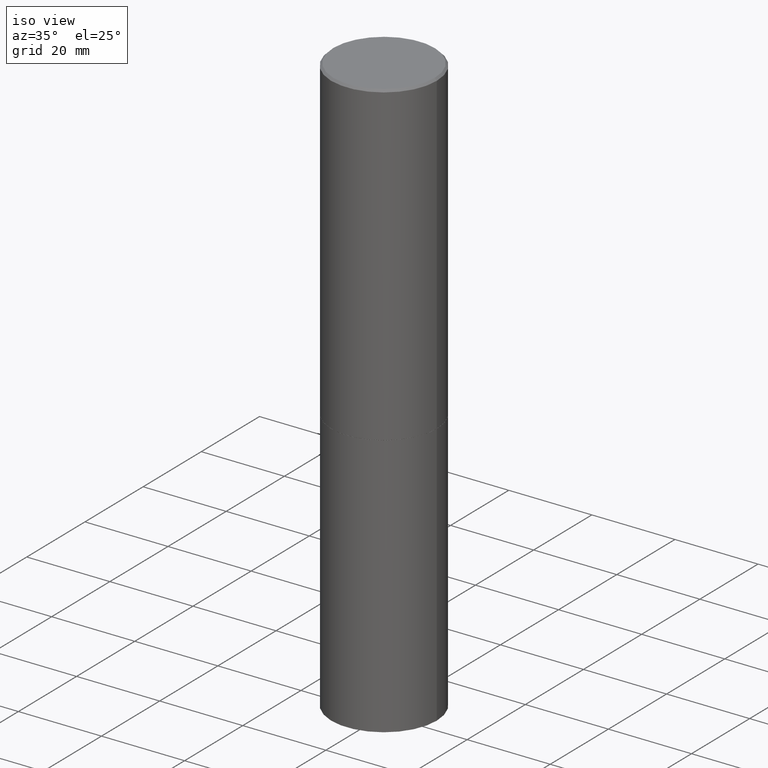
[diagram: clean part render]
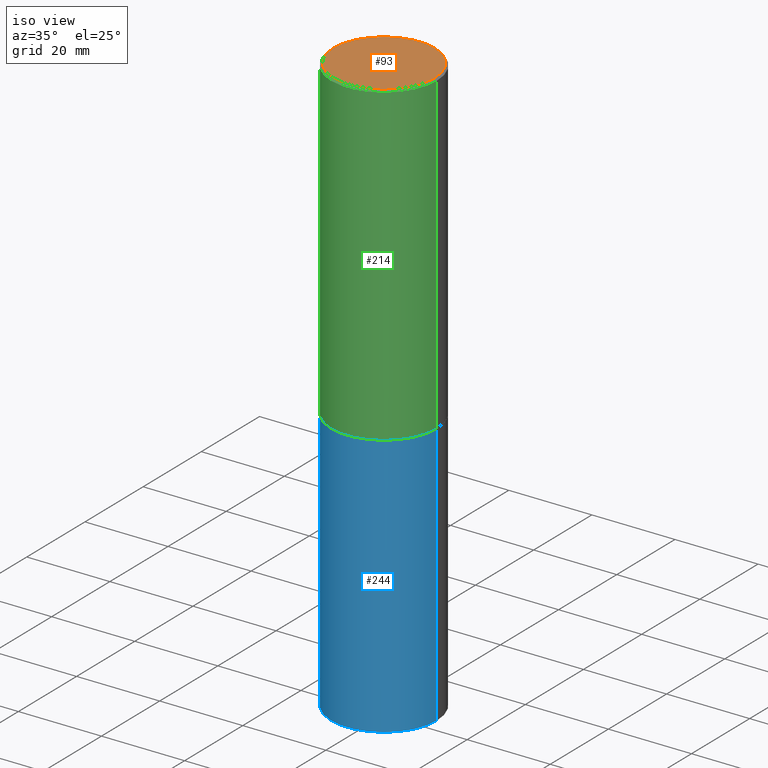
[diagram: same view with three faces highlighted in distinct colors, each labeled with its STEP entity id]
A machine part, iso view with three faces highlighted in distinct colors.
Their STEP definitions:

[orange] entity #93 — the highlighted planar face has unit normal (0, -0, -1).
#11 = CARTESIAN_POINT ( 'NONE',  ( -0.4799999999999996492, 3.386736898677836830E-15, 1.280553747027767124E-17 ) ) ;
#32 = VERTEX_POINT ( 'NONE', #11 ) ;
#39 = CARTESIAN_POINT ( 'NONE',  ( 3.351822085289405181E-15, 0.4799999999999996492, -1.669508273909558064E-15 ) ) ;
#41 = DIRECTION ( 'NONE',  ( -1.000000000000000000, 6.982962677686265922E-15, -4.876176775795935793E-29 ) ) ;
#70 = CARTESIAN_POINT ( 'NONE',  ( -3.131554243005659264E-46, 4.471029511141341874E-32, 1.280553747030123384E-17 ) ) ;
#93 = ADVANCED_FACE ( 'NONE', ( #120 ), #94, .F. ) ;
#94 = PLANE ( 'NONE',  #232 ) ;
#97 = CIRCLE ( 'NONE', #194, 0.4799999999999996492 ) ;
#101 = DIRECTION ( 'NONE',  ( -2.445468806185136597E-29, 3.491481338843145583E-15, 1.000000000000000000 ) ) ;
#120 = FACE_OUTER_BOUND ( 'NONE', #276, .T. ) ;
#185 = DIRECTION ( 'NONE',  ( -2.445468806185136597E-29, 3.491481338843145583E-15, 1.000000000000000000 ) ) ;
#194 = AXIS2_PLACEMENT_3D ( 'NONE', #70, #185, #331 ) ;
#204 = EDGE_CURVE ( 'NONE', #222, #32, #97, .T. ) ;
#222 = VERTEX_POINT ( 'NONE', #360 ) ;
#228 = CIRCLE ( 'NONE', #298, 0.4799999999999996492 ) ;
#232 = AXIS2_PLACEMENT_3D ( 'NONE', #39, #234, #41 ) ;
#234 = DIRECTION ( 'NONE',  ( 2.438088387897960049E-29, -3.491481338843145188E-15, -1.000000000000000000 ) ) ;
#242 = DIRECTION ( 'NONE',  ( 1.000000000000000000, -6.982962677686267499E-15, 4.876036955247132767E-29 ) ) ;
#274 = ORIENTED_EDGE ( 'NONE', *, *, #204, .T. ) ;
#276 = EDGE_LOOP ( 'NONE', ( #308, #274 ) ) ;
#298 = AXIS2_PLACEMENT_3D ( 'NONE', #357, #101, #242 ) ;
#308 = ORIENTED_EDGE ( 'NONE', *, *, #348, .T. ) ;
#331 = DIRECTION ( 'NONE',  ( 1.000000000000000000, -6.982962677686267499E-15, 4.876036955247132767E-29 ) ) ;
#348 = EDGE_CURVE ( 'NONE', #32, #222, #228, .T. ) ;
#357 = CARTESIAN_POINT ( 'NONE',  ( -3.131554243005659264E-46, 4.471029511141341874E-32, 1.280553747030123384E-17 ) ) ;
#360 = CARTESIAN_POINT ( 'NONE',  ( 0.4799999999999996492, -3.396558832296480127E-15, 1.280553747032483033E-17 ) ) ;

[blue] entity #244 — the highlighted cylindrical surface (partial cylindrical patch) has radius 12.7 mm, axis along (-0, 0, 1).
#8 = CARTESIAN_POINT ( 'NONE',  ( 0.5000000000000000000, -3.491481338843133355E-15, 2.438088387897967896E-29 ) ) ;
#19 = CARTESIAN_POINT ( 'NONE',  ( 0.000000000000000000, 0.000000000000000000, 0.000000000000000000 ) ) ;
#26 = VERTEX_POINT ( 'NONE', #60 ) ;
#60 = CARTESIAN_POINT ( 'NONE',  ( 0.5000000000000000000, -2.269462870248043307E-14, -5.500000000000000000 ) ) ;
#98 = EDGE_CURVE ( 'NONE', #26, #129, #233, .T. ) ;
#113 = EDGE_LOOP ( 'NONE', ( #247, #311, #220, #281 ) ) ;
#129 = VERTEX_POINT ( 'NONE', #320 ) ;
#131 = EDGE_CURVE ( 'NONE', #364, #129, #303, .T. ) ;
#145 = CARTESIAN_POINT ( 'NONE',  ( 7.336406418555408669E-29, -1.047444401652943478E-14, -2.999999999999999556 ) ) ;
#150 = CARTESIAN_POINT ( 'NONE',  ( -0.5000000000000000000, -1.128608201128286632E-14, -2.999999999999999556 ) ) ;
#152 = DIRECTION ( 'NONE',  ( 1.000000000000000000, -6.982962677686262766E-15, 0.000000000000000000 ) ) ;
#153 = FACE_OUTER_BOUND ( 'NONE', #113, .T. ) ;
#175 = AXIS2_PLACEMENT_3D ( 'NONE', #19, #187, #295 ) ;
#179 = AXIS2_PLACEMENT_3D ( 'NONE', #181, #265, #152 ) ;
#181 = CARTESIAN_POINT ( 'NONE',  ( 1.345007843401824904E-28, -1.920314736363729972E-14, -5.500000000000000000 ) ) ;
#184 = CYLINDRICAL_SURFACE ( 'NONE', #175, 0.5000000000000000000 ) ;
#187 = DIRECTION ( 'NONE',  ( -2.445468806185136597E-29, 3.491481338843145583E-15, 1.000000000000000000 ) ) ;
#196 = VERTEX_POINT ( 'NONE', #319 ) ;
#215 = VECTOR ( 'NONE', #230, 39.37007874015748143 ) ;
#220 = ORIENTED_EDGE ( 'NONE', *, *, #98, .T. ) ;
#226 = EDGE_CURVE ( 'NONE', #196, #364, #325, .T. ) ;
#230 = DIRECTION ( 'NONE',  ( -2.445468806185136877E-29, 3.491481338843145188E-15, 1.000000000000000000 ) ) ;
#231 = DIRECTION ( 'NONE',  ( -2.445468806185136597E-29, 3.491481338843145583E-15, 1.000000000000000000 ) ) ;
#233 = LINE ( 'NONE', #8, #215 ) ;
#244 = ADVANCED_FACE ( 'NONE', ( #153 ), #184, .T. ) ;
#247 = ORIENTED_EDGE ( 'NONE', *, *, #226, .F. ) ;
#265 = DIRECTION ( 'NONE',  ( -2.445468806185136597E-29, 3.491481338843145583E-15, 1.000000000000000000 ) ) ;
#270 = DIRECTION ( 'NONE',  ( -2.445468806185136877E-29, 3.491481338843145188E-15, 1.000000000000000000 ) ) ;
#281 = ORIENTED_EDGE ( 'NONE', *, *, #131, .F. ) ;
#285 = EDGE_CURVE ( 'NONE', #196, #26, #330, .T. ) ;
#295 = DIRECTION ( 'NONE',  ( 1.000000000000000000, -6.982962677686266711E-15, 4.876176775795935793E-29 ) ) ;
#297 = AXIS2_PLACEMENT_3D ( 'NONE', #145, #231, #322 ) ;
#303 = CIRCLE ( 'NONE', #297, 0.5000000000000000000 ) ;
#311 = ORIENTED_EDGE ( 'NONE', *, *, #285, .T. ) ;
#316 = VECTOR ( 'NONE', #270, 39.37007874015748143 ) ;
#319 = CARTESIAN_POINT ( 'NONE',  ( -0.5000000000000000000, -1.128608201128286632E-14, -5.500000000000000000 ) ) ;
#320 = CARTESIAN_POINT ( 'NONE',  ( 0.5000000000000000000, -1.396592535537256813E-14, -2.999999999999999556 ) ) ;
#322 = DIRECTION ( 'NONE',  ( 1.000000000000000000, -6.982962677686266711E-15, 0.000000000000000000 ) ) ;
#325 = LINE ( 'NONE', #329, #316 ) ;
#329 = CARTESIAN_POINT ( 'NONE',  ( -0.5000000000000000000, 3.552713678800500929E-15, -2.459467545127452891E-29 ) ) ;
#330 = CIRCLE ( 'NONE', #179, 0.5000000000000000000 ) ;
#364 = VERTEX_POINT ( 'NONE', #150 ) ;

[green] entity #214 — the highlighted cylindrical surface (partial cylindrical patch) has radius 12.7 mm, axis along (-0, 0, 1).
#13 = DIRECTION ( 'NONE',  ( -2.445468806185136597E-29, 3.491481338843145583E-15, 1.000000000000000000 ) ) ;
#17 = CARTESIAN_POINT ( 'NONE',  ( 0.4999999999999998335, -3.491481338843132566E-15, 2.438088387897967336E-29 ) ) ;
#30 = AXIS2_PLACEMENT_3D ( 'NONE', #156, #13, #236 ) ;
#35 = VERTEX_POINT ( 'NONE', #40 ) ;
#37 = CARTESIAN_POINT ( 'NONE',  ( -0.4999999999999998335, 3.552713678800499746E-15, -2.459467545127452330E-29 ) ) ;
#40 = CARTESIAN_POINT ( 'NONE',  ( 0.4999999999999997224, -3.500078625662627502E-15, -0.02000000000000012879 ) ) ;
#45 = DIRECTION ( 'NONE',  ( -2.445468806185136597E-29, 3.491481338843145583E-15, 1.000000000000000000 ) ) ;
#50 = VERTEX_POINT ( 'NONE', #258 ) ;
#54 = EDGE_LOOP ( 'NONE', ( #254, #130, #343, #332 ) ) ;
#63 = DIRECTION ( 'NONE',  ( -2.445468806185136877E-29, 3.491481338843145188E-15, 1.000000000000000000 ) ) ;
#66 = EDGE_CURVE ( 'NONE', #50, #137, #260, .T. ) ;
#67 = LINE ( 'NONE', #17, #273 ) ;
#71 = CARTESIAN_POINT ( 'NONE',  ( 0.5000000000000000000, -1.396243387403372828E-14, -2.999000000000000554 ) ) ;
#78 = AXIS2_PLACEMENT_3D ( 'NONE', #211, #45, #355 ) ;
#86 = VECTOR ( 'NONE', #63, 39.37007874015748143 ) ;
#127 = DIRECTION ( 'NONE',  ( -2.445468806185136597E-29, 3.491481338843145583E-15, 1.000000000000000000 ) ) ;
#130 = ORIENTED_EDGE ( 'NONE', *, *, #218, .T. ) ;
#137 = VERTEX_POINT ( 'NONE', #177 ) ;
#154 = CYLINDRICAL_SURFACE ( 'NONE', #30, 0.4999999999999998335 ) ;
#156 = CARTESIAN_POINT ( 'NONE',  ( 0.000000000000000000, 0.000000000000000000, 0.000000000000000000 ) ) ;
#160 = CIRCLE ( 'NONE', #78, 0.5000000000000000000 ) ;
#177 = CARTESIAN_POINT ( 'NONE',  ( -0.4999999999999997224, 3.421651712066268085E-15, -0.02000000000000012879 ) ) ;
#211 = CARTESIAN_POINT ( 'NONE',  ( 7.333960949749226429E-29, -1.047095253519059492E-14, -2.999000000000000554 ) ) ;
#214 = ADVANCED_FACE ( 'NONE', ( #299 ), #154, .T. ) ;
#216 = DIRECTION ( 'NONE',  ( -2.445468806185136877E-29, 3.491481338843145188E-15, 1.000000000000000000 ) ) ;
#218 = EDGE_CURVE ( 'NONE', #50, #278, #160, .T. ) ;
#236 = DIRECTION ( 'NONE',  ( 1.000000000000000000, -6.982962677686267499E-15, 4.876176775795936353E-29 ) ) ;
#238 = EDGE_CURVE ( 'NONE', #278, #35, #67, .T. ) ;
#254 = ORIENTED_EDGE ( 'NONE', *, *, #66, .F. ) ;
#258 = CARTESIAN_POINT ( 'NONE',  ( -0.5000000000000000000, -1.717677402183226998E-15, -2.999000000000000554 ) ) ;
#260 = LINE ( 'NONE', #37, #86 ) ;
#263 = CIRCLE ( 'NONE', #291, 0.4999999999999997224 ) ;
#269 = DIRECTION ( 'NONE',  ( 1.000000000000000000, -6.982962677686266711E-15, 0.000000000000000000 ) ) ;
#273 = VECTOR ( 'NONE', #216, 39.37007874015748143 ) ;
#278 = VERTEX_POINT ( 'NONE', #71 ) ;
#279 = EDGE_CURVE ( 'NONE', #137, #35, #263, .T. ) ;
#291 = AXIS2_PLACEMENT_3D ( 'NONE', #328, #127, #269 ) ;
#299 = FACE_OUTER_BOUND ( 'NONE', #54, .T. ) ;
#328 = CARTESIAN_POINT ( 'NONE',  ( 4.890937612370304688E-31, -6.982962677686335982E-17, -0.02000000000000012879 ) ) ;
#332 = ORIENTED_EDGE ( 'NONE', *, *, #279, .F. ) ;
#343 = ORIENTED_EDGE ( 'NONE', *, *, #238, .T. ) ;
#355 = DIRECTION ( 'NONE',  ( 1.000000000000000000, -6.982962677686266711E-15, 0.000000000000000000 ) ) ;